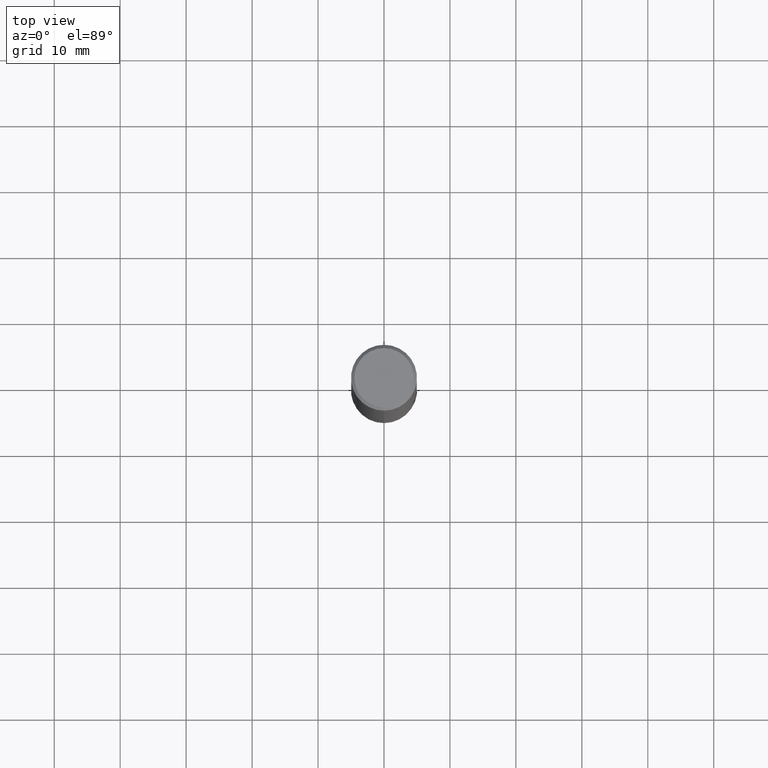
[diagram: clean part render]
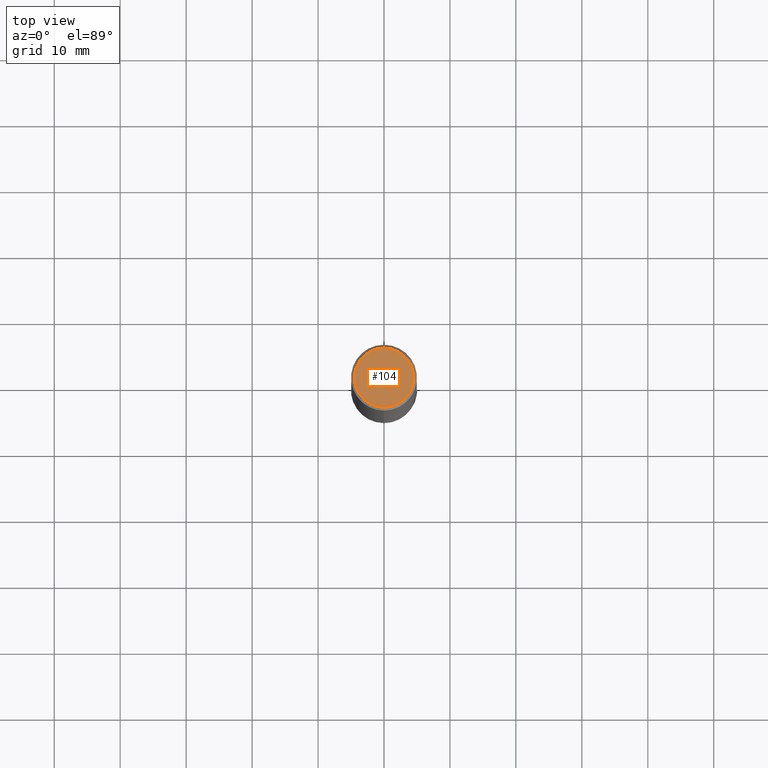
[diagram: same view with one face highlighted and labeled with its STEP entity id]
A machine part, top view. The second image highlights one B-rep face of the part: STEP entity #104.
In plain terms, the highlighted planar face has unit normal (-0, 0, 1).
Its self-contained STEP definition (entity closure, byte-faithful):
#104=ADVANCED_FACE('',(#218),#219,.T.);
#120=VERTEX_POINT('',#235);
#132=EDGE_CURVE('',#120,#140,#247,.T.);
#140=VERTEX_POINT('',#255);
#148=EDGE_CURVE('',#140,#120,#264,.T.);
#218=FACE_OUTER_BOUND('',#329,.T.);
#219=PLANE('',#330);
#235=CARTESIAN_POINT('',(5.5107285922007E-016,-4.5,0.0));
#247=CIRCLE('',#370,4.5);
#255=CARTESIAN_POINT('',(0.0,4.5,0.0));
#264=CIRCLE('',#391,4.5);
#329=EDGE_LOOP('',(#488,#489));
#330=AXIS2_PLACEMENT_3D('',#490,#491,#492);
#370=AXIS2_PLACEMENT_3D('',#506,#507,#508);
#391=AXIS2_PLACEMENT_3D('',#526,#527,#528);
#488=ORIENTED_EDGE('',*,*,#148,.F.);
#489=ORIENTED_EDGE('',*,*,#132,.F.);
#490=CARTESIAN_POINT('',(0.0,2.25,0.0));
#491=DIRECTION('',(-0.0,0.0,1.0));
#492=DIRECTION('',(0.0,-1.0,0.0));
#506=CARTESIAN_POINT('',(0.0,0.0,0.0));
#507=DIRECTION('',(0.0,0.0,-1.0));
#508=DIRECTION('',(0.0,1.0,0.0));
#526=CARTESIAN_POINT('',(0.0,0.0,0.0));
#527=DIRECTION('',(0.0,0.0,-1.0));
#528=DIRECTION('',(0.0,1.0,0.0));